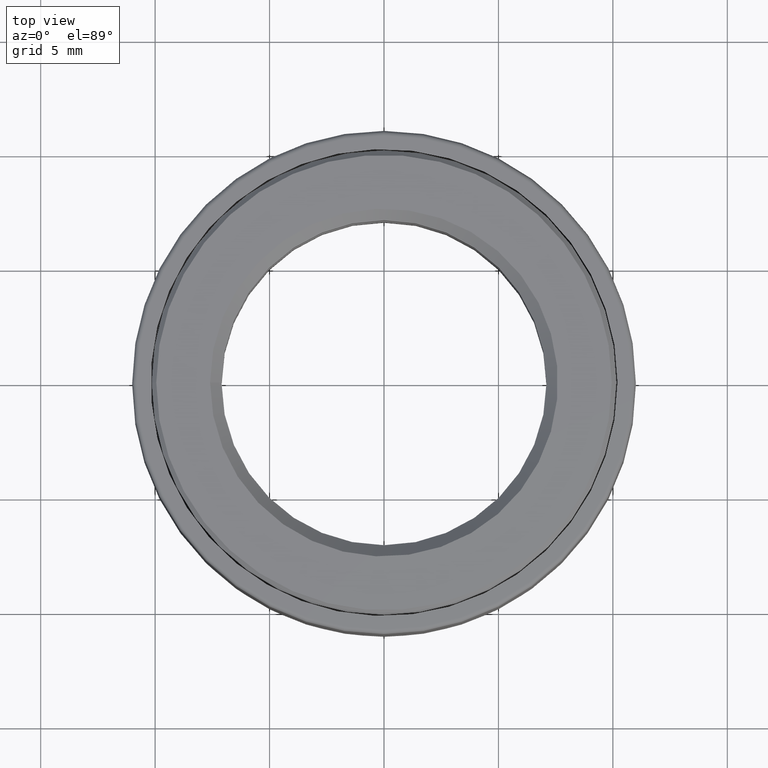
[diagram: clean part render]
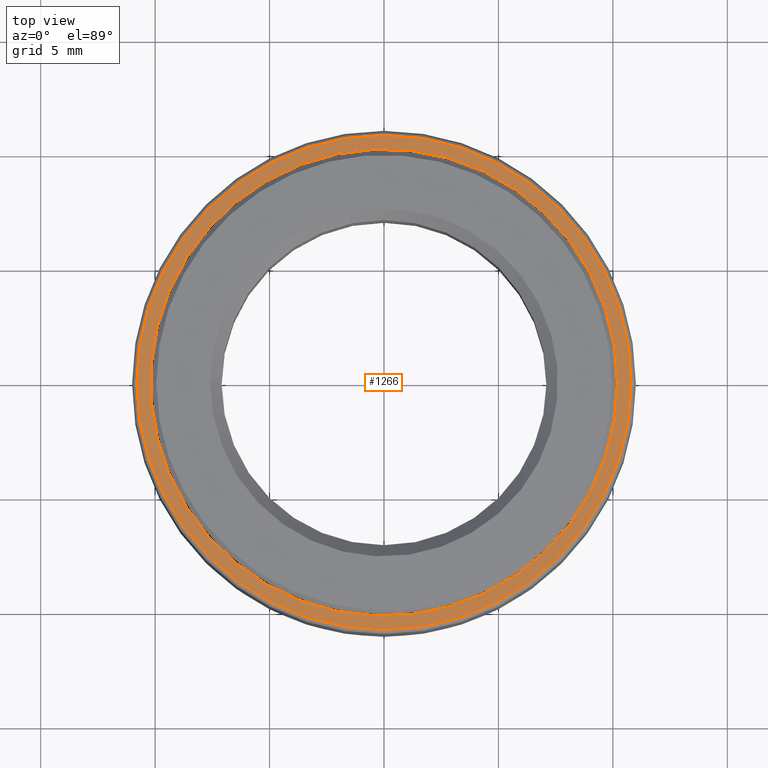
[diagram: same view with one face highlighted and labeled with its STEP entity id]
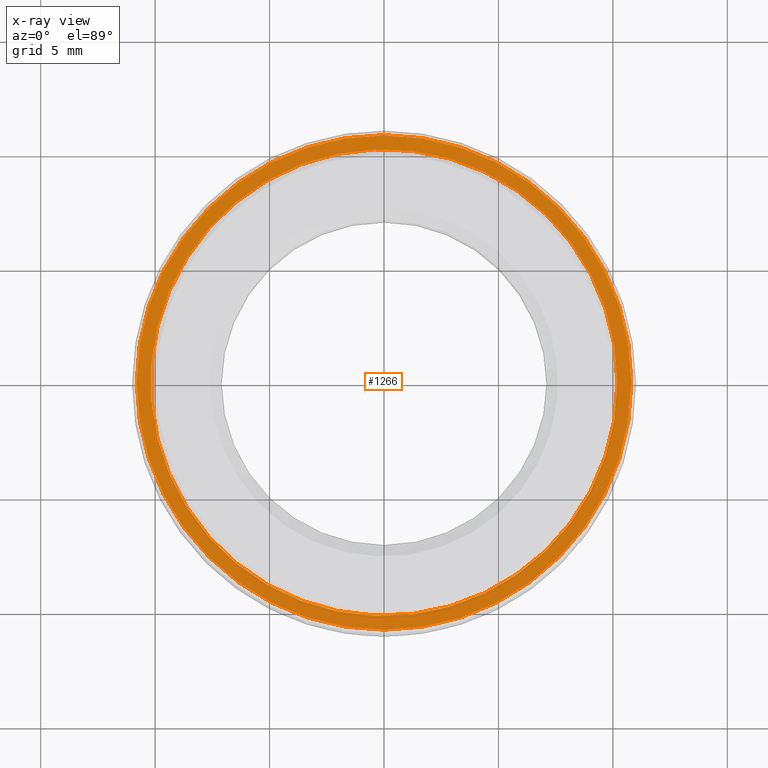
[diagram: x-ray of the same camera — body ghosted, the highlighted face saturated]
A machine part, top view. The second image highlights one B-rep face of the part: STEP entity #1266.
The next image is the same camera in x-ray: the body ghosted, the highlighted face saturated — about 0% of this face is hidden behind the body in this view.
In plain terms, the highlighted planar face has unit normal (0, 0, -1).
Its self-contained STEP definition (entity closure, byte-faithful):
#47 = CARTESIAN_POINT ( 'NONE',  ( 0.0000000000000000000, 11.00000000000000000, 3.550000000000000300 ) ) ;
#71 = FACE_BOUND ( 'NONE', #8429, .T. ) ;
#424 = ORIENTED_EDGE ( 'NONE', *, *, #1409, .T. ) ;
#441 = CARTESIAN_POINT ( 'NONE',  ( 0.0000000000000000000, 0.0000000000000000000, 3.550000000000000300 ) ) ;
#1093 = CIRCLE ( 'NONE', #5666, 10.19999999999999900 ) ;
#1163 = EDGE_LOOP ( 'NONE', ( #424 ) ) ;
#1219 = DIRECTION ( 'NONE',  ( 1.000000000000000000, 0.0000000000000000000, 0.0000000000000000000 ) ) ;
#1266 = ADVANCED_FACE ( 'NONE', ( #1987, #71 ), #3143, .F. ) ;
#1409 = EDGE_CURVE ( 'NONE', #5769, #5769, #2231, .T. ) ;
#1987 = FACE_OUTER_BOUND ( 'NONE', #1163, .T. ) ;
#2231 = CIRCLE ( 'NONE', #9906, 10.79999999999999900 ) ;
#2711 = CARTESIAN_POINT ( 'NONE',  ( 0.0000000000000000000, 0.0000000000000000000, 3.550000000000000700 ) ) ;
#3143 = PLANE ( 'NONE',  #6837 ) ;
#4299 = EDGE_CURVE ( 'NONE', #7582, #7582, #1093, .T. ) ;
#4322 = DIRECTION ( 'NONE',  ( -1.000000000000000000, 0.0000000000000000000, 0.0000000000000000000 ) ) ;
#4850 = CARTESIAN_POINT ( 'NONE',  ( 10.19999999999999900, 0.0000000000000000000, 3.550000000000000700 ) ) ;
#4882 = DIRECTION ( 'NONE',  ( -0.0000000000000000000, -0.0000000000000000000, 1.000000000000000000 ) ) ;
#5376 = DIRECTION ( 'NONE',  ( -1.000000000000000000, 0.0000000000000000000, -0.0000000000000000000 ) ) ;
#5666 = AXIS2_PLACEMENT_3D ( 'NONE', #2711, #4882, #1219 ) ;
#5769 = VERTEX_POINT ( 'NONE', #6353 ) ;
#5772 = DIRECTION ( 'NONE',  ( -0.0000000000000000000, -0.0000000000000000000, 1.000000000000000000 ) ) ;
#6353 = CARTESIAN_POINT ( 'NONE',  ( -10.79999999999999900, 0.0000000000000000000, 3.550000000000000300 ) ) ;
#6837 = AXIS2_PLACEMENT_3D ( 'NONE', #47, #7019, #5376 ) ;
#7019 = DIRECTION ( 'NONE',  ( 0.0000000000000000000, 0.0000000000000000000, -1.000000000000000000 ) ) ;
#7582 = VERTEX_POINT ( 'NONE', #4850 ) ;
#8429 = EDGE_LOOP ( 'NONE', ( #9680 ) ) ;
#9680 = ORIENTED_EDGE ( 'NONE', *, *, #4299, .F. ) ;
#9906 = AXIS2_PLACEMENT_3D ( 'NONE', #441, #5772, #4322 ) ;